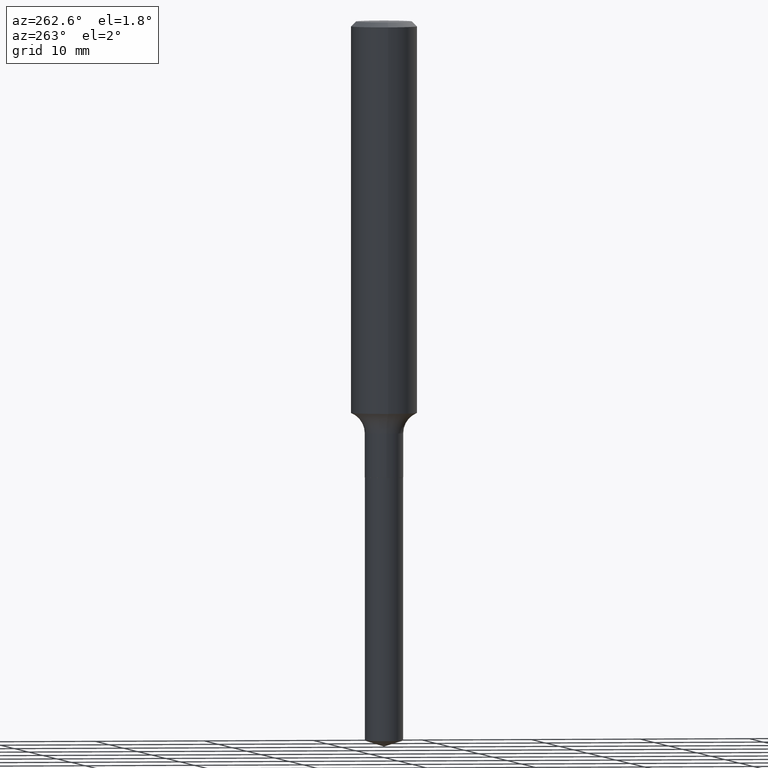
[diagram: clean part render]
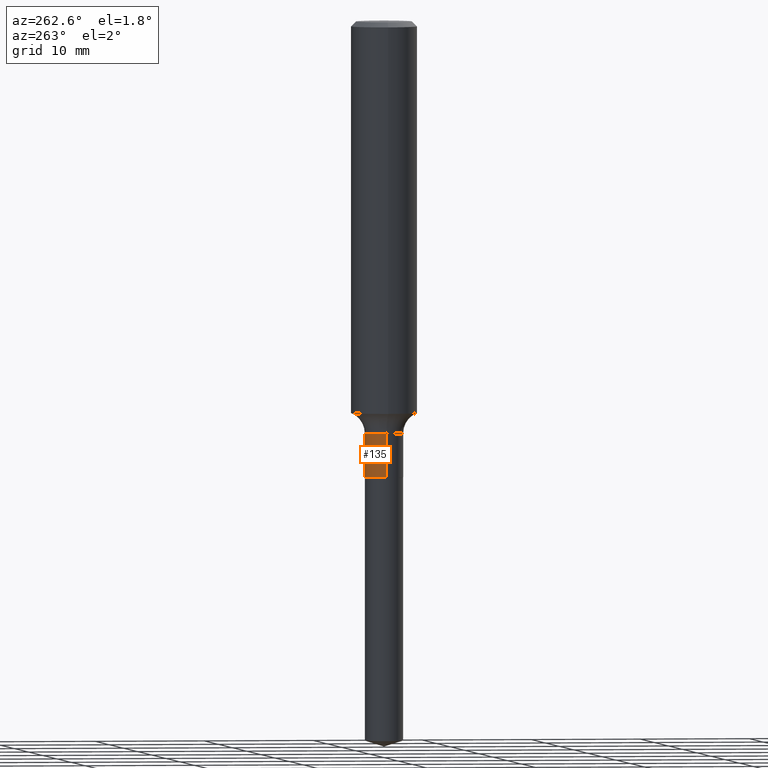
[diagram: same view with one face highlighted and labeled with its STEP entity id]
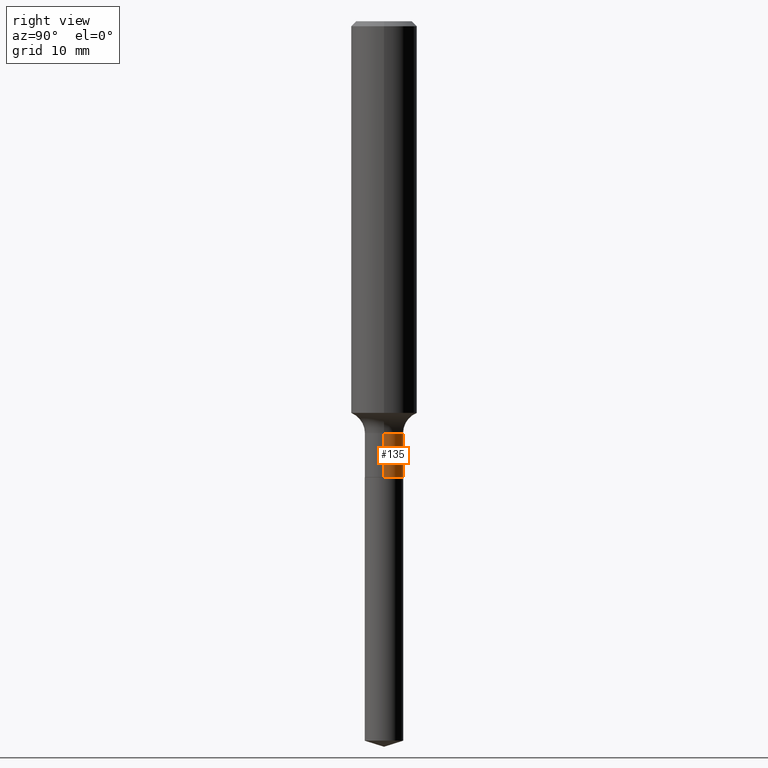
[diagram: same view with one face highlighted and labeled with its STEP entity id]
A machine part, auxiliary view. The second image highlights one B-rep face of the part: STEP entity #135.
A second angle (right view) of the same face is appended — the face is thin or edge-on in the first view.
In plain terms, the highlighted cylindrical surface (edge-blend (fillet) strip) has radius 1.7501 mm, axis along (-0, 0, 1).
Its self-contained STEP definition (entity closure, byte-faithful):
#34 = CIRCLE ( 'NONE', #291, 0.06890000000000000291 ) ;
#66 = CARTESIAN_POINT ( 'NONE',  ( 0.06890000000000000291, -6.183762599225093699E-15, -1.633299999999999974 ) ) ;
#70 = DIRECTION ( 'NONE',  ( 1.000000000000000000, -6.982962677686265922E-15, 0.000000000000000000 ) ) ;
#83 = CYLINDRICAL_SURFACE ( 'NONE', #470, 0.06890000000000000291 ) ;
#102 = CARTESIAN_POINT ( 'NONE',  ( 3.994184201142184223E-29, -5.702636470732509961E-15, -1.633299999999999974 ) ) ;
#111 = ORIENTED_EDGE ( 'NONE', *, *, #297, .F. ) ;
#135 = ADVANCED_FACE ( 'NONE', ( #419 ), #83, .T. ) ;
#145 = AXIS2_PLACEMENT_3D ( 'NONE', #437, #284, #208 ) ;
#152 = DIRECTION ( 'NONE',  ( -2.445468806185136597E-29, 3.491481338843145583E-15, 1.000000000000000000 ) ) ;
#166 = DIRECTION ( 'NONE',  ( -2.445468806185136877E-29, 3.491481338843145188E-15, 1.000000000000000000 ) ) ;
#167 = VECTOR ( 'NONE', #166, 39.37007874015748143 ) ;
#170 = DIRECTION ( 'NONE',  ( -2.445468806185136877E-29, 3.491481338843145188E-15, 1.000000000000000000 ) ) ;
#207 = VERTEX_POINT ( 'NONE', #66 ) ;
#208 = DIRECTION ( 'NONE',  ( 1.000000000000000000, -6.982962677686267499E-15, 0.000000000000000000 ) ) ;
#212 = LINE ( 'NONE', #369, #456 ) ;
#219 = EDGE_LOOP ( 'NONE', ( #339, #280, #111, #315 ) ) ;
#225 = CARTESIAN_POINT ( 'NONE',  ( 0.000000000000000000, 0.000000000000000000, 0.000000000000000000 ) ) ;
#246 = EDGE_CURVE ( 'NONE', #427, #397, #317, .T. ) ;
#248 = DIRECTION ( 'NONE',  ( -2.445468806185136597E-29, 3.491481338843145583E-15, 1.000000000000000000 ) ) ;
#279 = VERTEX_POINT ( 'NONE', #366 ) ;
#280 = ORIENTED_EDGE ( 'NONE', *, *, #246, .T. ) ;
#284 = DIRECTION ( 'NONE',  ( -2.445468806185136597E-29, 3.491481338843145583E-15, 1.000000000000000000 ) ) ;
#291 = AXIS2_PLACEMENT_3D ( 'NONE', #102, #248, #70 ) ;
#297 = EDGE_CURVE ( 'NONE', #279, #397, #447, .T. ) ;
#302 = DIRECTION ( 'NONE',  ( 1.000000000000000000, -6.982962677686265922E-15, 4.876176775795934672E-29 ) ) ;
#315 = ORIENTED_EDGE ( 'NONE', *, *, #451, .F. ) ;
#317 = LINE ( 'NONE', #322, #167 ) ;
#322 = CARTESIAN_POINT ( 'NONE',  ( -0.06890000000000000291, 4.895639449387090487E-16, -3.389146277185630017E-30 ) ) ;
#339 = ORIENTED_EDGE ( 'NONE', *, *, #438, .T. ) ;
#366 = CARTESIAN_POINT ( 'NONE',  ( 0.06889999999999998903, -5.632108547687876483E-15, -1.475300000000000056 ) ) ;
#369 = CARTESIAN_POINT ( 'NONE',  ( 0.06890000000000000291, -4.811261284925837385E-16, 3.359685798523399268E-30 ) ) ;
#397 = VERTEX_POINT ( 'NONE', #450 ) ;
#419 = FACE_OUTER_BOUND ( 'NONE', #219, .T. ) ;
#427 = VERTEX_POINT ( 'NONE', #446 ) ;
#437 = CARTESIAN_POINT ( 'NONE',  ( 3.607800129764931825E-29, -5.150982419195292745E-15, -1.475300000000000056 ) ) ;
#438 = EDGE_CURVE ( 'NONE', #207, #427, #34, .T. ) ;
#446 = CARTESIAN_POINT ( 'NONE',  ( -0.06890000000000001679, -4.937245500025191811E-15, -1.633299999999999974 ) ) ;
#447 = CIRCLE ( 'NONE', #145, 0.06889999999999998903 ) ;
#450 = CARTESIAN_POINT ( 'NONE',  ( -0.06889999999999998903, -4.937245500025191811E-15, -1.475300000000000056 ) ) ;
#451 = EDGE_CURVE ( 'NONE', #207, #279, #212, .T. ) ;
#456 = VECTOR ( 'NONE', #170, 39.37007874015748143 ) ;
#470 = AXIS2_PLACEMENT_3D ( 'NONE', #225, #152, #302 ) ;